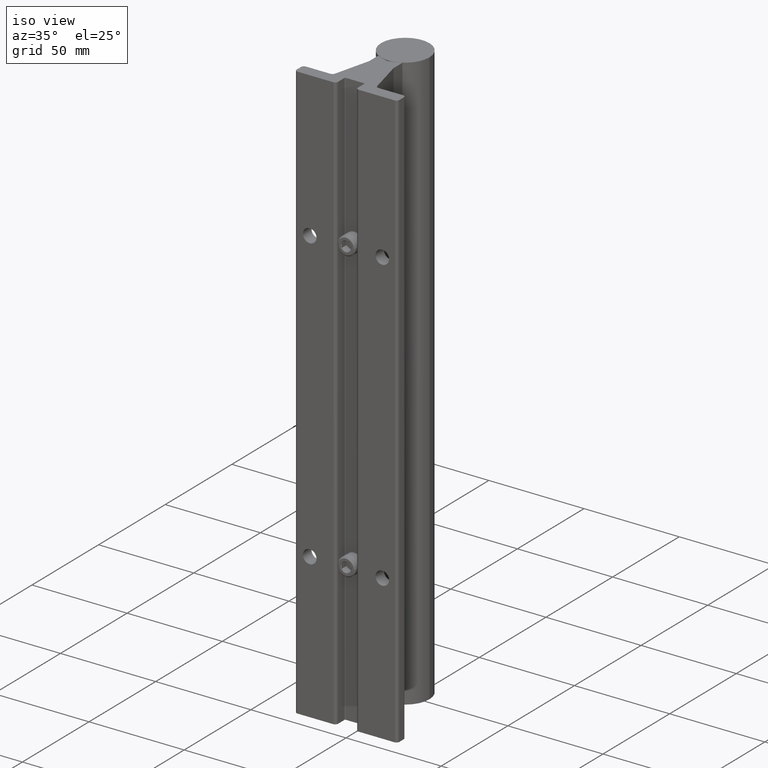
[diagram: clean part render]
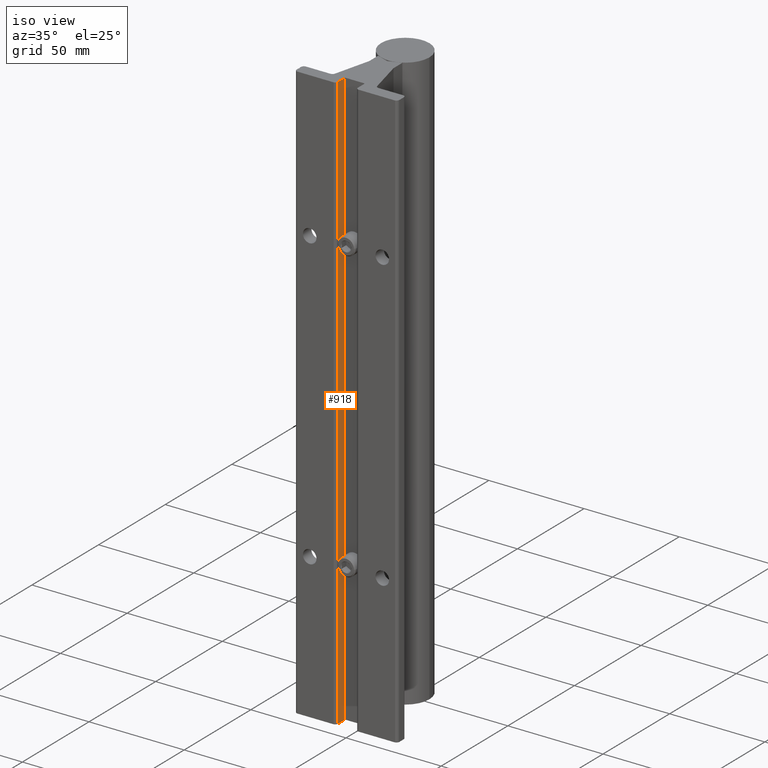
[diagram: same view with one face highlighted and labeled with its STEP entity id]
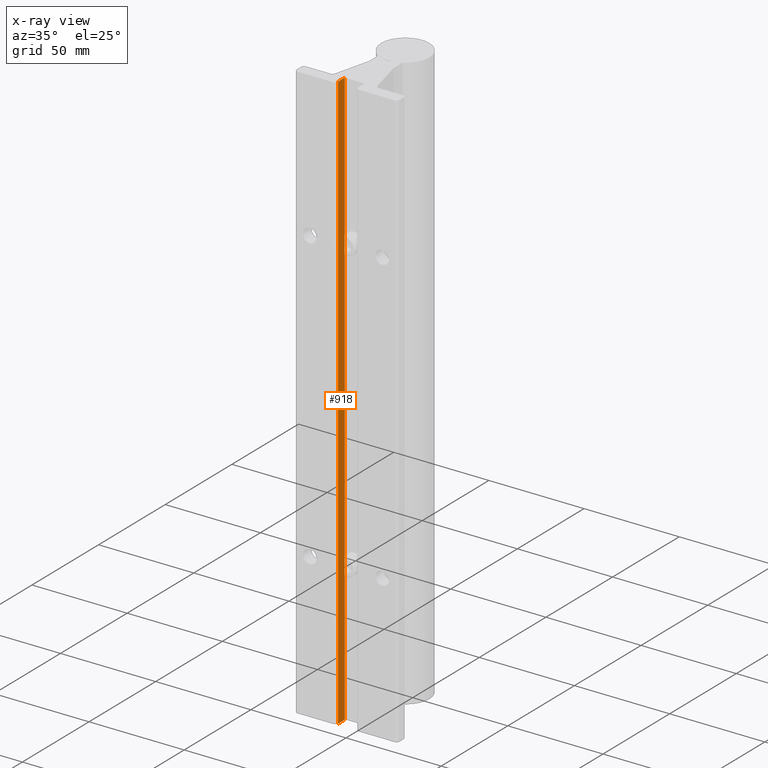
[diagram: x-ray of the same camera — body ghosted, the highlighted face saturated]
A machine part, iso view. The second image highlights one B-rep face of the part: STEP entity #918.
The next image is the same camera in x-ray: the body ghosted, the highlighted face saturated — about 0% of this face is hidden behind the body in this view.
In plain terms, the highlighted planar face has unit normal (1, -0, 0).
Its self-contained STEP definition (entity closure, byte-faithful):
#72 = EDGE_LOOP ( 'NONE', ( #5853, #5584, #4471, #1670 ) ) ;
#82 = VERTEX_POINT ( 'NONE', #2517 ) ;
#213 = CARTESIAN_POINT ( 'NONE',  ( -0.2050000000033027348, 0.06000000000000010880, 0.000000000000000000 ) ) ;
#424 = DIRECTION ( 'NONE',  ( 2.156722100261260166E-15, 1.000000000000000000, 0.000000000000000000 ) ) ;
#824 = AXIS2_PLACEMENT_3D ( 'NONE', #2844, #1868, #5137 ) ;
#918 = ADVANCED_FACE ( 'NONE', ( #4217 ), #3805, .T. ) ;
#967 = VERTEX_POINT ( 'NONE', #1516 ) ;
#1043 = CARTESIAN_POINT ( 'NONE',  ( -0.2050000000033029290, 0.06000000000000010880, -14.49573696227415098 ) ) ;
#1378 = DIRECTION ( 'NONE',  ( -2.156722100261260166E-15, -1.000000000000000000, 0.000000000000000000 ) ) ;
#1516 = CARTESIAN_POINT ( 'NONE',  ( -0.2050000000033027348, 0.06000000000000038636, -12.00000000000000178 ) ) ;
#1670 = ORIENTED_EDGE ( 'NONE', *, *, #2360, .F. ) ;
#1868 = DIRECTION ( 'NONE',  ( 1.000000000000000000, -2.156722100261260166E-15, 0.000000000000000000 ) ) ;
#2140 = DIRECTION ( 'NONE',  ( 0.000000000000000000, 0.000000000000000000, 1.000000000000000000 ) ) ;
#2161 = LINE ( 'NONE', #1043, #4748 ) ;
#2325 = LINE ( 'NONE', #3275, #4148 ) ;
#2360 = EDGE_CURVE ( 'NONE', #967, #3595, #2161, .T. ) ;
#2517 = CARTESIAN_POINT ( 'NONE',  ( -0.2050000000033025405, 0.2500000000000001110, -12.00000000000000178 ) ) ;
#2678 = LINE ( 'NONE', #3185, #3199 ) ;
#2844 = CARTESIAN_POINT ( 'NONE',  ( -0.2050000000033029290, 0.06000000000000010880, -14.49573696227415098 ) ) ;
#2845 = CARTESIAN_POINT ( 'NONE',  ( -0.2050000000033024572, 0.2500000000000001110, -14.49573696227415098 ) ) ;
#3185 = CARTESIAN_POINT ( 'NONE',  ( -0.2050000000033029290, 0.06000000000000010880, 0.000000000000000000 ) ) ;
#3199 = VECTOR ( 'NONE', #424, 39.37007874015748143 ) ;
#3275 = CARTESIAN_POINT ( 'NONE',  ( -0.2050000000033029290, 0.06000000000000010880, -12.00000000000000178 ) ) ;
#3367 = VECTOR ( 'NONE', #4661, 39.37007874015748143 ) ;
#3595 = VERTEX_POINT ( 'NONE', #213 ) ;
#3805 = PLANE ( 'NONE',  #824 ) ;
#4045 = VERTEX_POINT ( 'NONE', #5456 ) ;
#4052 = EDGE_CURVE ( 'NONE', #3595, #4045, #2678, .T. ) ;
#4148 = VECTOR ( 'NONE', #1378, 39.37007874015748143 ) ;
#4217 = FACE_OUTER_BOUND ( 'NONE', #72, .T. ) ;
#4471 = ORIENTED_EDGE ( 'NONE', *, *, #4052, .F. ) ;
#4661 = DIRECTION ( 'NONE',  ( 0.000000000000000000, 0.000000000000000000, 1.000000000000000000 ) ) ;
#4748 = VECTOR ( 'NONE', #2140, 39.37007874015748143 ) ;
#5137 = DIRECTION ( 'NONE',  ( 2.156722100261260166E-15, 1.000000000000000000, 0.000000000000000000 ) ) ;
#5456 = CARTESIAN_POINT ( 'NONE',  ( -0.2050000000033025405, 0.2500000000000001110, -0.000000000000000000 ) ) ;
#5584 = ORIENTED_EDGE ( 'NONE', *, *, #5977, .T. ) ;
#5602 = LINE ( 'NONE', #2845, #3367 ) ;
#5757 = EDGE_CURVE ( 'NONE', #82, #967, #2325, .T. ) ;
#5853 = ORIENTED_EDGE ( 'NONE', *, *, #5757, .F. ) ;
#5977 = EDGE_CURVE ( 'NONE', #82, #4045, #5602, .T. ) ;